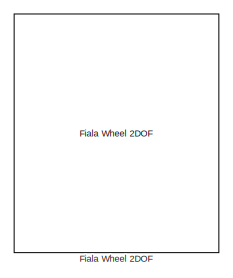
[diagram: root canvas - part 1/5, top center region]
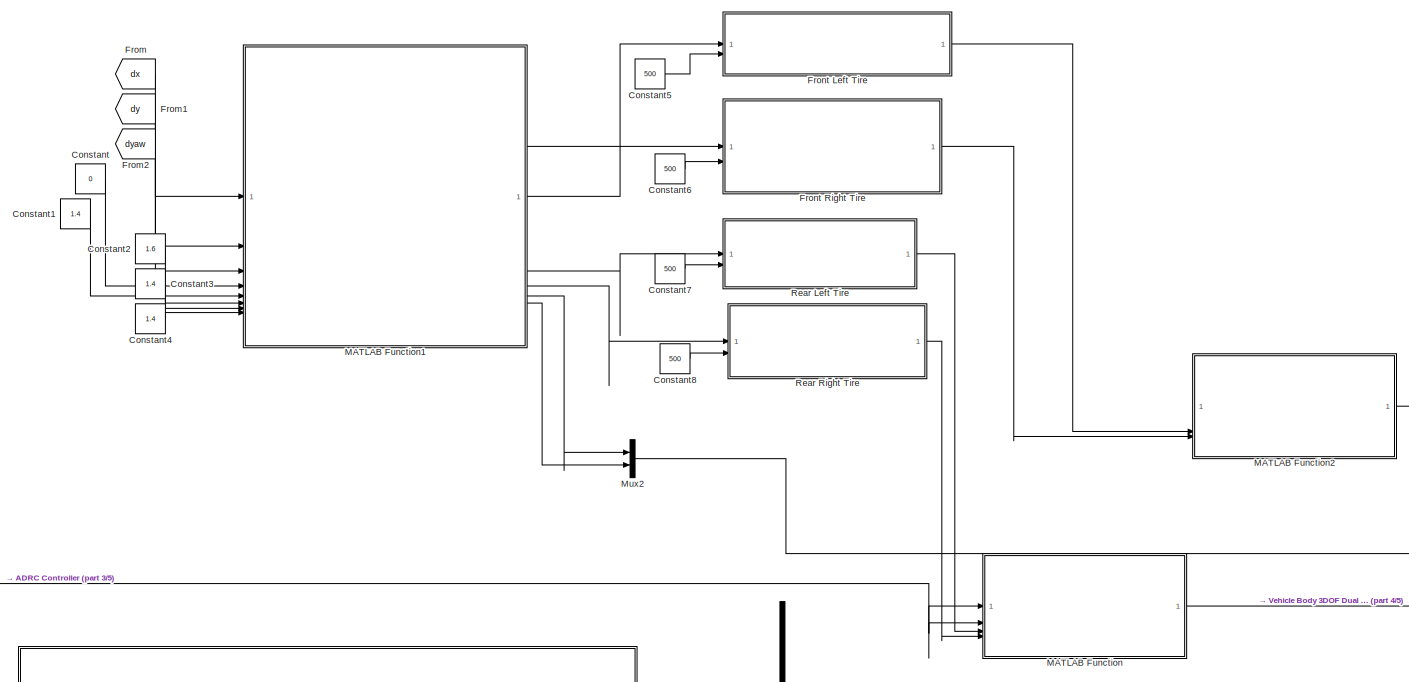
[diagram: root canvas - part 2/5, central region]
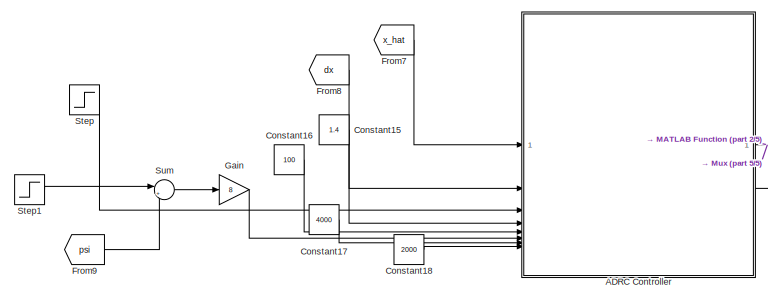
[diagram: root canvas - part 3/5, middle left region]
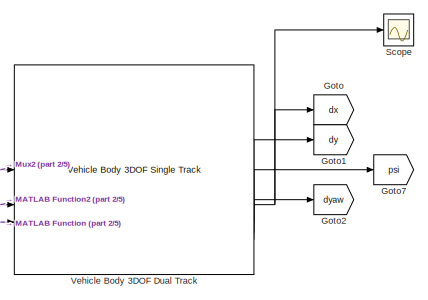
[diagram: root canvas - part 4/5, middle right region]
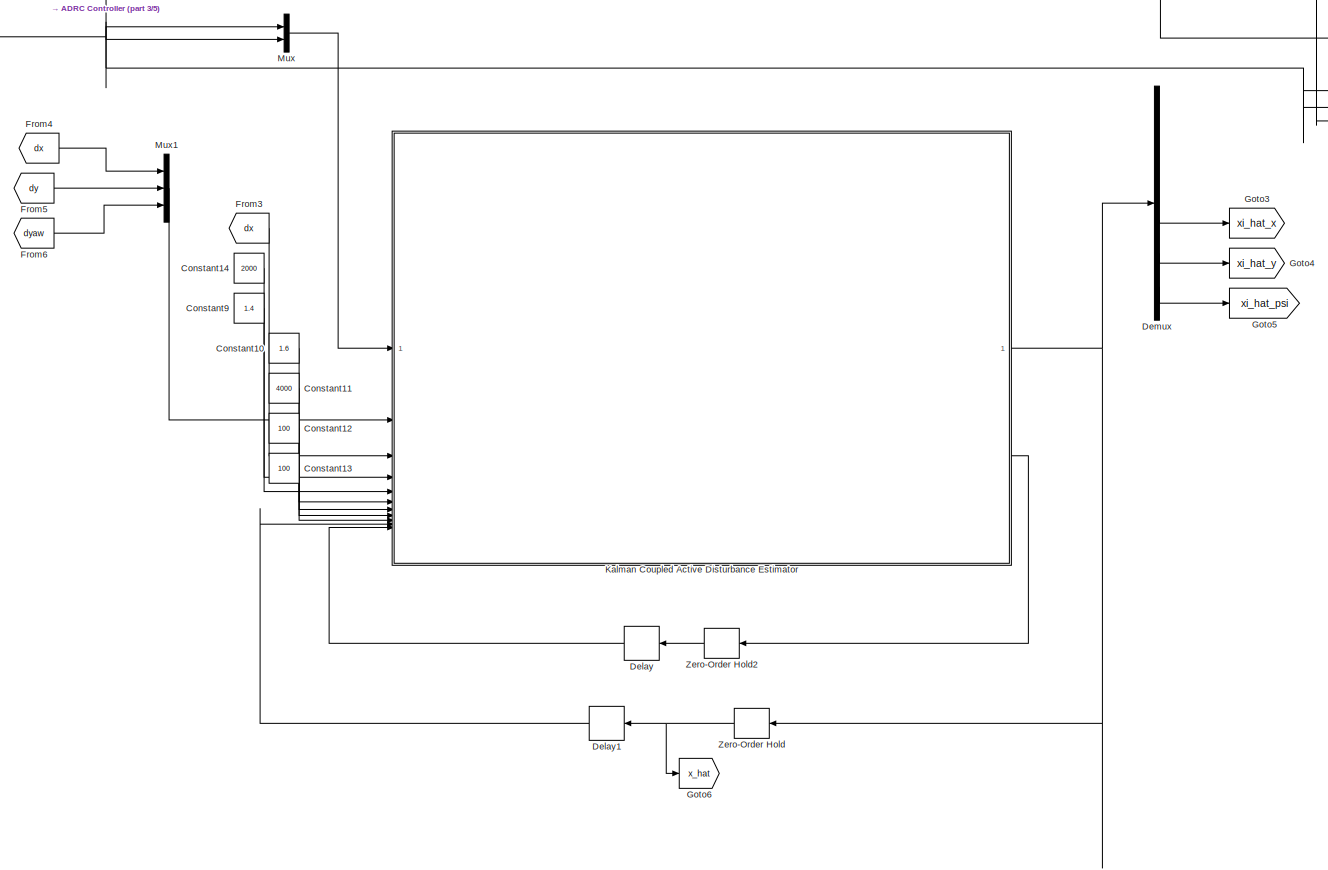
[diagram: root canvas - part 5/5, bottom center region]
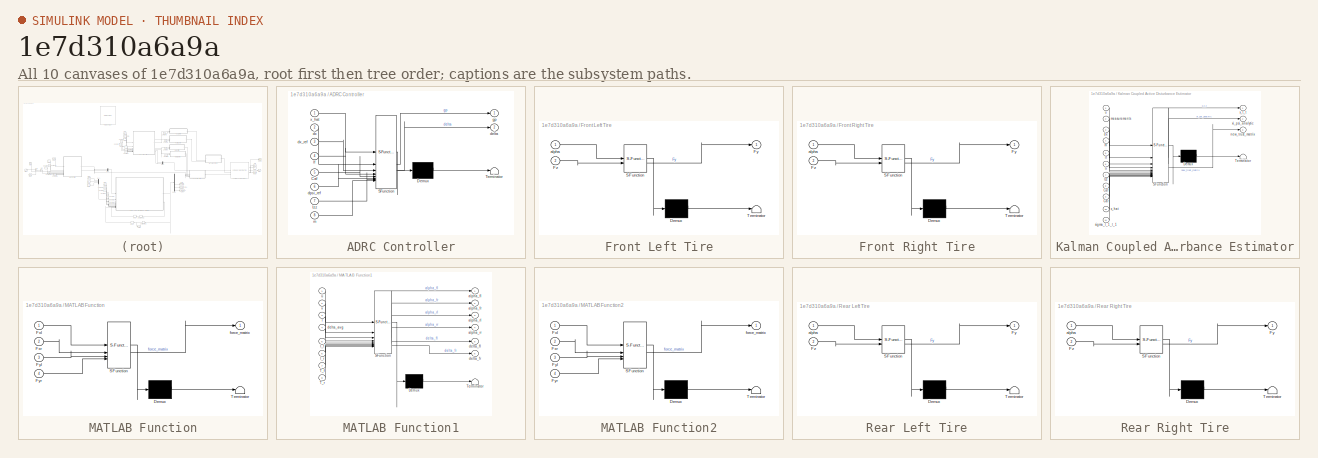
[diagram: thumbnail index - all 10 canvases of the model, root first then tree order]
MODEL slx_1e7d310a6a9a
KIND model
CONFIG AbsTol = auto
CONFIG EnableMultiTasking = off
CONFIG FixedStep = auto
CONFIG MaxStep = auto
CONFIG MinStep = auto
CONFIG RelTol = 1e-3
CONFIG SampleTimeConstraint = Unconstrained
CONFIG SolverName = VariableStepAuto
CONFIG StartTime = 0.0
CONFIG StopTime = 10.0
BLOCK [SubSystem] ADRC Controller
  ErrorFcn = Stateflow.Translate.translate
  PermitHierarchicalResolution = ExplicitOnly
  SFBlockType = MATLAB Function
  TreatAsAtomicUnit = on
BLOCK [Demux] ADRC Controller/ Demux 
  Outputs = 1
BLOCK [S-Function] ADRC Controller/ SFunction 
  EnableBusSupport = on
  FunctionName = sf_sfun
  PortCounts = [8 3]
  SFcnIsStateOwnerBlock = off
  SFunctionDeploymentMode = off
  Tag = Stateflow S-Function 7
BLOCK [Terminator] ADRC Controller/ Terminator 
BLOCK [Inport] ADRC Controller/Caf
  Port = 5
BLOCK [Inport] ADRC Controller/Izz
  Port = 7
BLOCK [Outport] ADRC Controller/delta
  Port = 2
BLOCK [Inport] ADRC Controller/dpsi_ref
  Port = 6
BLOCK [Inport] ADRC Controller/dx
  Port = 2
BLOCK [Inport] ADRC Controller/dx_ref
  Port = 3
BLOCK [Outport] ADRC Controller/gp
BLOCK [Inport] ADRC Controller/lf
  Port = 4
BLOCK [Inport] ADRC Controller/m
  Port = 8
BLOCK [Inport] ADRC Controller/x_hat
BLOCK [Constant] Constant
  Value = 0
BLOCK [Constant] Constant1
  Value = 1.4
BLOCK [Constant] Constant10
  Value = 1.6
BLOCK [Constant] Constant11
  Value = 4000
BLOCK [Constant] Constant12
  Value = 100
BLOCK [Constant] Constant13
  Value = 100
BLOCK [Constant] Constant14
  Value = 2000
BLOCK [Constant] Constant15
  Value = 1.4
BLOCK [Constant] Constant16
  Value = 100
BLOCK [Constant] Constant17
  Value = 4000
BLOCK [Constant] Constant18
  Value = 2000
BLOCK [Constant] Constant2
  Value = 1.6
BLOCK [Constant] Constant3
  Value = 1.4
BLOCK [Constant] Constant4
  Value = 1.4
BLOCK [Constant] Constant5
  Value = 500
BLOCK [Constant] Constant6
  Value = 500
BLOCK [Constant] Constant7
  Value = 500
BLOCK [Constant] Constant8
  Value = 500
BLOCK [Constant] Constant9
  Value = 1.4
BLOCK [Delay] Delay
  DelayLength = 1
  InputPortMap = u0
  SampleTime = 0.01
BLOCK [Delay] Delay1
  DelayLength = 1
  InputPortMap = u0
  SampleTime = 0.01
BLOCK [Demux] Demux
  Outputs = 6
BLOCK [Reference] Fiala Wheel 2DOF  REF=vehdynlibtire/Fiala Wheel 2DOF
  Commented = on
  SourceBlock = vehdynlibtire/Fiala Wheel 2DOF
  SourceType = Fiala Wheel 2DOF
BLOCK [From] From
  GotoTag = dx
BLOCK [From] From1
  GotoTag = dy
BLOCK [From] From2
  GotoTag = dyaw
BLOCK [From] From3
  GotoTag = dx
BLOCK [From] From4
  GotoTag = dx
BLOCK [From] From5
  GotoTag = dy
BLOCK [From] From6
  GotoTag = dyaw
BLOCK [From] From7
  GotoTag = x_hat
BLOCK [From] From8
  GotoTag = dx
BLOCK [From] From9
  GotoTag = psi
BLOCK [SubSystem] Front Left Tire
  ErrorFcn = Stateflow.Translate.translate
  PermitHierarchicalResolution = ExplicitOnly
  SFBlockType = MATLAB Function
  TreatAsAtomicUnit = on
BLOCK [Demux] Front Left Tire/ Demux 
  Outputs = 1
BLOCK [S-Function] Front Left Tire/ SFunction 
  EnableBusSupport = on
  FunctionName = sf_sfun
  PortCounts = [2 2]
  SFcnIsStateOwnerBlock = off
  SFunctionDeploymentMode = off
  Tag = Stateflow S-Function 3
BLOCK [Terminator] Front Left Tire/ Terminator 
BLOCK [Outport] Front Left Tire/Fy
BLOCK [Inport] Front Left Tire/Fz
  Port = 2
BLOCK [Inport] Front Left Tire/alpha
BLOCK [SubSystem] Front Right Tire
  ErrorFcn = Stateflow.Translate.translate
  PermitHierarchicalResolution = ExplicitOnly
  SFBlockType = MATLAB Function
  TreatAsAtomicUnit = on
BLOCK [Demux] Front Right Tire/ Demux 
  Outputs = 1
BLOCK [S-Function] Front Right Tire/ SFunction 
  EnableBusSupport = on
  FunctionName = sf_sfun
  PortCounts = [2 2]
  SFcnIsStateOwnerBlock = off
  SFunctionDeploymentMode = off
  Tag = Stateflow S-Function 2
BLOCK [Terminator] Front Right Tire/ Terminator 
BLOCK [Outport] Front Right Tire/Fy
BLOCK [Inport] Front Right Tire/Fz
  Port = 2
BLOCK [Inport] Front Right Tire/alpha
BLOCK [Gain] Gain
  Gain = 8
BLOCK [Goto] Goto
  GotoTag = dx
BLOCK [Goto] Goto1
  GotoTag = dy
BLOCK [Goto] Goto2
  GotoTag = dyaw
BLOCK [Goto] Goto3
  GotoTag = xi_hat_x
BLOCK [Goto] Goto4
  GotoTag = xi_hat_y
BLOCK [Goto] Goto5
  GotoTag = xi_hat_psi
BLOCK [Goto] Goto6
  GotoTag = x_hat
BLOCK [Goto] Goto7
  GotoTag = psi
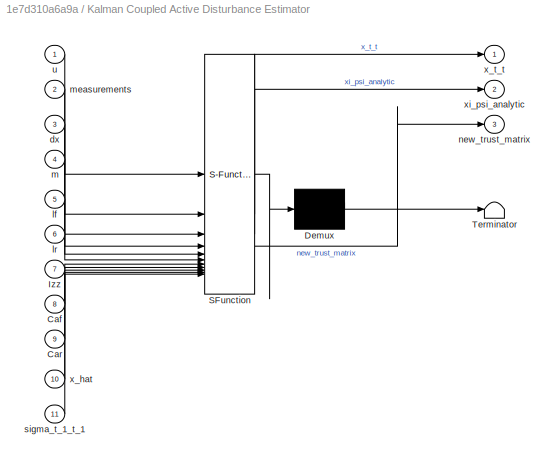
BLOCK [SubSystem] Kalman Coupled Active Disturbance Estimator
  ErrorFcn = Stateflow.Translate.translate
  PermitHierarchicalResolution = ExplicitOnly
  SFBlockType = MATLAB Function
  TreatAsAtomicUnit = on
BLOCK [Demux] Kalman Coupled Active Disturbance Estimator/ Demux 
  Outputs = 1
BLOCK [S-Function] Kalman Coupled Active Disturbance Estimator/ SFunction 
  EnableBusSupport = on
  FunctionName = sf_sfun
  PortCounts = [11 4]
  SFcnIsStateOwnerBlock = off
  SFunctionDeploymentMode = off
  Tag = Stateflow S-Function 6
BLOCK [Terminator] Kalman Coupled Active Disturbance Estimator/ Terminator 
BLOCK [Inport] Kalman Coupled Active Disturbance Estimator/Caf
  Port = 8
BLOCK [Inport] Kalman Coupled Active Disturbance Estimator/Car
  Port = 9
BLOCK [Inport] Kalman Coupled Active Disturbance Estimator/Izz
  Port = 7
BLOCK [Inport] Kalman Coupled Active Disturbance Estimator/dx
  Port = 3
BLOCK [Inport] Kalman Coupled Active Disturbance Estimator/lf
  Port = 5
BLOCK [Inport] Kalman Coupled Active Disturbance Estimator/lr
  Port = 6
BLOCK [Inport] Kalman Coupled Active Disturbance Estimator/m
  Port = 4
BLOCK [Inport] Kalman Coupled Active Disturbance Estimator/measurements
  Port = 2
BLOCK [Outport] Kalman Coupled Active Disturbance Estimator/new_trust_matrix
  Port = 3
BLOCK [Inport] Kalman Coupled Active Disturbance Estimator/sigma_t_1_t_1
  Port = 11
BLOCK [Inport] Kalman Coupled Active Disturbance Estimator/u
BLOCK [Inport] Kalman Coupled Active Disturbance Estimator/x_hat
  Port = 10
BLOCK [Outport] Kalman Coupled Active Disturbance Estimator/x_t_t
BLOCK [Outport] Kalman Coupled Active Disturbance Estimator/xi_psi_analytic
  Port = 2
BLOCK [SubSystem] MATLAB Function
  ErrorFcn = Stateflow.Translate.translate
  PermitHierarchicalResolution = ExplicitOnly
  SFBlockType = MATLAB Function
  TreatAsAtomicUnit = on
BLOCK [Demux] MATLAB Function/ Demux 
  Outputs = 1
BLOCK [S-Function] MATLAB Function/ SFunction 
  EnableBusSupport = on
  FunctionName = sf_sfun
  PortCounts = [4 2]
  SFcnIsStateOwnerBlock = off
  SFunctionDeploymentMode = off
  Tag = Stateflow S-Function 8
BLOCK [Terminator] MATLAB Function/ Terminator 
BLOCK [Inport] MATLAB Function/Fxl
BLOCK [Inport] MATLAB Function/Fxr
  Port = 2
BLOCK [Inport] MATLAB Function/Fyl
  Port = 3
BLOCK [Inport] MATLAB Function/Fyr
  Port = 4
BLOCK [Outport] MATLAB Function/force_matrix
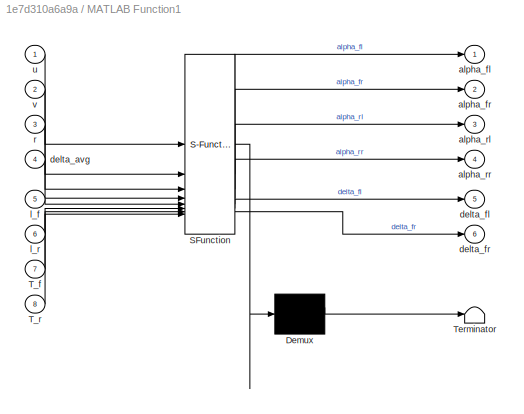
BLOCK [SubSystem] MATLAB Function1
  ErrorFcn = Stateflow.Translate.translate
  PermitHierarchicalResolution = ExplicitOnly
  SFBlockType = MATLAB Function
  TreatAsAtomicUnit = on
BLOCK [Demux] MATLAB Function1/ Demux 
  Outputs = 1
BLOCK [S-Function] MATLAB Function1/ SFunction 
  EnableBusSupport = on
  FunctionName = sf_sfun
  PortCounts = [8 7]
  SFcnIsStateOwnerBlock = off
  SFunctionDeploymentMode = off
  Tag = Stateflow S-Function 1
BLOCK [Terminator] MATLAB Function1/ Terminator 
BLOCK [Inport] MATLAB Function1/T_f
  Port = 7
BLOCK [Inport] MATLAB Function1/T_r
  Port = 8
BLOCK [Outport] MATLAB Function1/alpha_fl
BLOCK [Outport] MATLAB Function1/alpha_fr
  Port = 2
BLOCK [Outport] MATLAB Function1/alpha_rl
  Port = 3
BLOCK [Outport] MATLAB Function1/alpha_rr
  Port = 4
BLOCK [Inport] MATLAB Function1/delta_avg
  Port = 4
BLOCK [Outport] MATLAB Function1/delta_fl
  Port = 5
BLOCK [Outport] MATLAB Function1/delta_fr
  Port = 6
BLOCK [Inport] MATLAB Function1/l_f
  Port = 5
BLOCK [Inport] MATLAB Function1/l_r
  Port = 6
BLOCK [Inport] MATLAB Function1/r
  Port = 3
BLOCK [Inport] MATLAB Function1/u
BLOCK [Inport] MATLAB Function1/v
  Port = 2
BLOCK [SubSystem] MATLAB Function2
  ErrorFcn = Stateflow.Translate.translate
  PermitHierarchicalResolution = ExplicitOnly
  SFBlockType = MATLAB Function
  TreatAsAtomicUnit = on
BLOCK [Demux] MATLAB Function2/ Demux 
  Outputs = 1
BLOCK [S-Function] MATLAB Function2/ SFunction 
  EnableBusSupport = on
  FunctionName = sf_sfun
  PortCounts = [4 2]
  SFcnIsStateOwnerBlock = off
  SFunctionDeploymentMode = off
  Tag = Stateflow S-Function 9
BLOCK [Terminator] MATLAB Function2/ Terminator 
BLOCK [Inport] MATLAB Function2/Fxl
BLOCK [Inport] MATLAB Function2/Fxr
  Port = 2
BLOCK [Inport] MATLAB Function2/Fyl
  Port = 3
BLOCK [Inport] MATLAB Function2/Fyr
  Port = 4
BLOCK [Outport] MATLAB Function2/force_matrix
BLOCK [Mux] Mux
  DisplayOption = bar
  Inputs = 2
BLOCK [Mux] Mux1
  DisplayOption = bar
  Inputs = 3
BLOCK [Mux] Mux2
  DisplayOption = bar
  Inputs = 2
BLOCK [SubSystem] Rear Left Tire
  ErrorFcn = Stateflow.Translate.translate
  PermitHierarchicalResolution = ExplicitOnly
  SFBlockType = MATLAB Function
  TreatAsAtomicUnit = on
BLOCK [Demux] Rear Left Tire/ Demux 
  Outputs = 1
BLOCK [S-Function] Rear Left Tire/ SFunction 
  EnableBusSupport = on
  FunctionName = sf_sfun
  PortCounts = [2 2]
  SFcnIsStateOwnerBlock = off
  SFunctionDeploymentMode = off
  Tag = Stateflow S-Function 5
BLOCK [Terminator] Rear Left Tire/ Terminator 
BLOCK [Outport] Rear Left Tire/Fy
BLOCK [Inport] Rear Left Tire/Fz
  Port = 2
BLOCK [Inport] Rear Left Tire/alpha
BLOCK [SubSystem] Rear Right Tire
  ErrorFcn = Stateflow.Translate.translate
  PermitHierarchicalResolution = ExplicitOnly
  SFBlockType = MATLAB Function
  TreatAsAtomicUnit = on
BLOCK [Demux] Rear Right Tire/ Demux 
  Outputs = 1
BLOCK [S-Function] Rear Right Tire/ SFunction 
  EnableBusSupport = on
  FunctionName = sf_sfun
  PortCounts = [2 2]
  SFcnIsStateOwnerBlock = off
  SFunctionDeploymentMode = off
  Tag = Stateflow S-Function 4
BLOCK [Terminator] Rear Right Tire/ Terminator 
BLOCK [Outport] Rear Right Tire/Fy
BLOCK [Inport] Rear Right Tire/Fz
  Port = 2
BLOCK [Inport] Rear Right Tire/alpha
BLOCK [Scope] Scope
  Floating = off
  NumInputPorts = 1
  ScopeSpecificationString = Simulink.scopes.TimeScopeBlockCfg('CurrentConfiguration', extmgr.ConfigurationSet(extmgr.Configuration('Core','General UI',true),extmgr.Configuration('Core','Source UI',true),extmgr.Configuration('Sources','WiredSimulink',true),extmgr.Configuration('Visuals','Time Domain',true,'SerializedDisplays',{struct('MinYLimReal','-6423.03751','MaxYLimReal','1161.20058','YLabelReal','','MinYLimMag','  0.0000...<+1514ch>
BLOCK [Step] Step
  After = 15
  Before = 10
  SampleTime = 0
BLOCK [Step] Step1
  After = 0.3
  SampleTime = 0
  Time = 10
BLOCK [Sum] Sum
  Inputs = |+-
BLOCK [Reference] Vehicle Body 3DOF Dual Track  REF=autolibshared/Vehicle Body 3DOF Single Track
  LibrarySourceBlock = vehdynlibeom/Vehicle Body 3DOF Dual Track
  SourceBlock = autolibshared/Vehicle Body 3DOF Single Track
  SourceType = Vehicle Body 3DOF Lateral
BLOCK [ZeroOrderHold] Zero-Order Hold
  SampleTime = 0.01
BLOCK [ZeroOrderHold] Zero-Order Hold2
  SampleTime = 0.01
NET ADRC Controller:1 -> MATLAB Function:1, MATLAB Function:2, Mux:1
LINE ADRC Controller:2 -> Mux:2
LINE Constant10:1 -> Kalman Coupled Active Disturbance Estimator:6
LINE Constant11:1 -> Kalman Coupled Active Disturbance Estimator:7
LINE Constant12:1 -> Kalman Coupled Active Disturbance Estimator:8
LINE Constant13:1 -> Kalman Coupled Active Disturbance Estimator:9
LINE Constant14:1 -> Kalman Coupled Active Disturbance Estimator:4
LINE Constant15:1 -> ADRC Controller:4
LINE Constant16:1 -> ADRC Controller:5
LINE Constant17:1 -> ADRC Controller:7
LINE Constant18:1 -> ADRC Controller:8
LINE Constant1:1 -> MATLAB Function1:5
LINE Constant2:1 -> MATLAB Function1:6
LINE Constant3:1 -> MATLAB Function1:7
LINE Constant4:1 -> MATLAB Function1:8
LINE Constant5:1 -> Front Left Tire:2
LINE Constant6:1 -> Front Right Tire:2
LINE Constant7:1 -> Rear Left Tire:2
LINE Constant8:1 -> Rear Right Tire:2
LINE Constant9:1 -> Kalman Coupled Active Disturbance Estimator:5
LINE Constant:1 -> MATLAB Function1:4
LINE Delay1:1 -> Kalman Coupled Active Disturbance Estimator:10
LINE Delay:1 -> Kalman Coupled Active Disturbance Estimator:11
LINE Demux:4 -> Goto3:1
LINE Demux:5 -> Goto4:1
LINE Demux:6 -> Goto5:1
LINE From1:1 -> MATLAB Function1:2
LINE From2:1 -> MATLAB Function1:3
LINE From3:1 -> Kalman Coupled Active Disturbance Estimator:3
LINE From4:1 -> Mux1:1
LINE From5:1 -> Mux1:2
LINE From6:1 -> Mux1:3
LINE From7:1 -> ADRC Controller:1
LINE From8:1 -> ADRC Controller:2
LINE From9:1 -> Sum:2
LINE From:1 -> MATLAB Function1:1
LINE Front Left Tire:1 -> MATLAB Function2:3
LINE Front Right Tire:1 -> MATLAB Function2:4
LINE Gain:1 -> ADRC Controller:6
NET Kalman Coupled Active Disturbance Estimator:1 -> Demux:1, Zero-Order Hold:1
LINE Kalman Coupled Active Disturbance Estimator:3 -> Zero-Order Hold2:1
LINE MATLAB Function1:1 -> Front Left Tire:1
LINE MATLAB Function1:2 -> Front Right Tire:1
LINE MATLAB Function1:3 -> Rear Left Tire:1
LINE MATLAB Function1:4 -> Rear Right Tire:1
LINE MATLAB Function1:5 -> Mux2:1
LINE MATLAB Function1:6 -> Mux2:2
LINE MATLAB Function2:1 -> Vehicle Body 3DOF Dual Track:2
LINE MATLAB Function:1 -> Vehicle Body 3DOF Dual Track:3
LINE Mux1:1 -> Kalman Coupled Active Disturbance Estimator:2
LINE Mux2:1 -> Vehicle Body 3DOF Dual Track:1
LINE Mux:1 -> Kalman Coupled Active Disturbance Estimator:1
LINE Rear Left Tire:1 -> MATLAB Function:3
LINE Rear Right Tire:1 -> MATLAB Function:4
LINE Step1:1 -> Sum:1
LINE Step:1 -> ADRC Controller:3
LINE Sum:1 -> Gain:1
NET Vehicle Body 3DOF Dual Track:2 -> Goto:1, Scope:1
LINE Vehicle Body 3DOF Dual Track:3 -> Goto1:1
LINE Vehicle Body 3DOF Dual Track:4 -> Goto7:1
LINE Vehicle Body 3DOF Dual Track:5 -> Goto2:1
LINE Zero-Order Hold2:1 -> Delay:1
NET Zero-Order Hold:1 -> Delay1:1, Goto6:1
note: NET lines group one-source signal fan-out (src -> all destinations, sorted); 1:1 wires keep LINE
CHART MATLAB Function states=1 transitions=1
  STATE_LABEL 'eML_blk_kernel()'
  STATE_LABEL 'SCRIPT:\nfunction force_matrix = create_force_matrix(Fxl, Fxr, Fyl, Fyr)\n\nforce_matrix = [Fxl, Fxr; Fyl, Fyr];'
CHART MATLAB Function2 states=1 transitions=1
  STATE_LABEL 'eML_blk_kernel()'
  STATE_LABEL 'SCRIPT:\nfunction force_matrix = create_force_matrix(Fxl, Fxr, Fyl, Fyr)\n\nforce_matrix = [Fxl, Fxr; Fyl, Fyr];'
CHART MATLAB Function1 states=1 transitions=1
  STATE_LABEL 'eML_blk_kernel()'
  STATE_LABEL 'SCRIPT:\nfunction [alpha_fl, alpha_fr, alpha_rl, alpha_rr, delta_fl, delta_fr] = calc_ackerman_and_slip(u, v, r, delta_avg, l_f, l_r, T_f, T_r)\n%#codegen\n% Calculates individual Ackerman steer angles from an average (bicycle) angle,\n% then calculates the lateral slip angles for all four tires.\n%\n% INPUTS:\n%   u:          Vehicle longitudinal velocity (at CG) [m/s]\n%   v:          Vehicle lateral ve...<+2632ch>'
CHART Front Right Tire states=1 transitions=1
  STATE_LABEL 'eML_blk_kernel()'
  STATE_LABEL "SCRIPT:\nfunction Fy = simple_pacejka_lat(alpha, Fz)\n\n    % Implements the simple Pacejka '89 lateral force model.\n    %\n    % INPUTS:\n    %   alpha:  Tire Slip Angle (radians)\n    %   Fz:     Vertical Load on the tire (Newtons)\n    %\n    % OUTPUT:\n    %   Fy:     Lateral Force (Newtons)\n    \n    % TIRE PACEJKA PARAMS:\n    %   B:      Stiffness Factor\n    %   C:      Shape Factor\n    %   D:      Pe...<+634ch>"  <repeated x4 — deduplicated; at blocks: Front Right Tire, Front Left Tire, Rear Right Tire, Rear Left Tire>
CHART Front Left Tire states=1 transitions=1
  STATE_LABEL 'eML_blk_kernel()'
CHART Rear Right Tire states=1 transitions=1
  STATE_LABEL 'eML_blk_kernel()'
CHART Rear Left Tire states=1 transitions=1
  STATE_LABEL 'eML_blk_kernel()'
CHART Kalman Coupled Active Disturbance Estimator states=1 transitions=1
  STATE_LABEL 'eML_blk_kernel()'
  STATE_LABEL 'SCRIPT:\nfunction [x_t_t, xi_psi_analytic, new_trust_matrix]= fcn(u, measurements, dx, m, lf, lr, Izz, Caf, Car, x_hat, sigma_t_1_t_1)\n\nsigma_y_given_x = eye(3)*0.05; % 4 states in the measurements vector\nsigma_x = eye(6)*0.05;\n\n% Retrieve dy, dz from measurements\ndy = measurements(2);\ndpsi = measurements(3);\n\nT = 0.01; % seconds\n\nA_aug = [\n    0, 0, 0, 1/m, 0, 0;\n    0, 0, 0, 0, 1/m, 0;\n    0, 0, ...<+1051ch>'
CHART ADRC Controller states=1 transitions=1
  STATE_LABEL 'eML_blk_kernel()'
  STATE_LABEL 'SCRIPT:\nfunction [gp, delta] = fcn(x_hat, dx, dx_ref, lf, Caf, dpsi_ref, Izz,  m)\n\n\nK1 = 24;\nK2 = 80;\nK1l = 4;\n\n% dx = x_hat(1)\ndy = x_hat(2);\ndpsi = x_hat(3);\nxi_hat_x = x_hat(3);\nxi_hat_y = x_hat(5)\nxi_hat_psi = x_hat(6); \n\n% ADRC Control Law:\ndelta = (Izz/(2*Caf*lf)) * (-xi_hat_psi/Izz - 0 - 25*(dpsi_ref - dpsi));\ngp = (m) * (-xi_hat_x - 0 - K1l*(dx_ref - dx));\n% delta = ((dx + dy + dpsi*lf)*Iz...<+93ch>'
CHART  states=0 transitions=0
CHART  states=0 transitions=0
CHART  states=0 transitions=0
CHART  states=0 transitions=0
CHART  states=0 transitions=0
CHART  states=0 transitions=0
CHART  states=0 transitions=0
CHART  states=0 transitions=0
CHART  states=0 transitions=0
